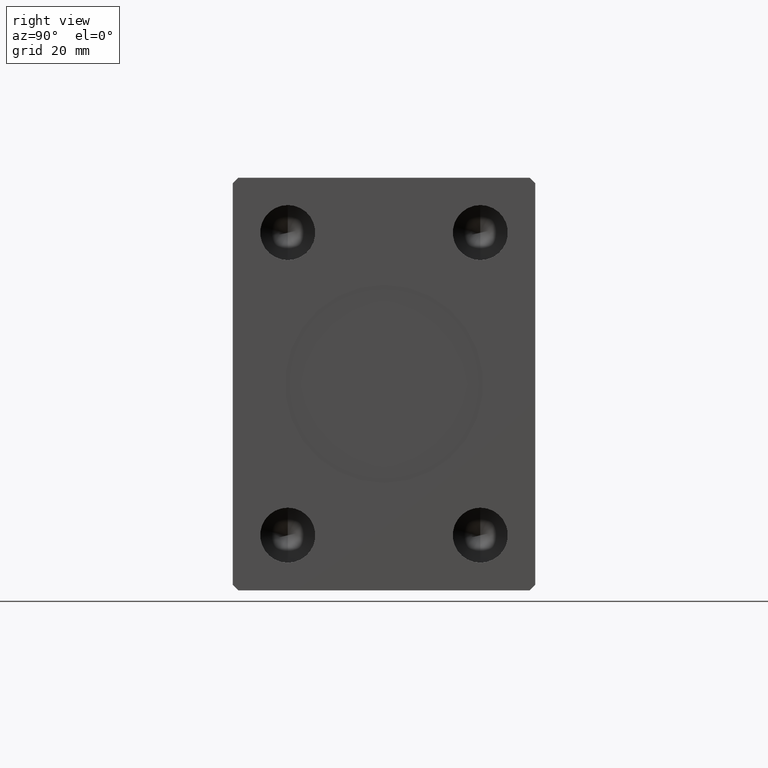
[diagram: clean part render]
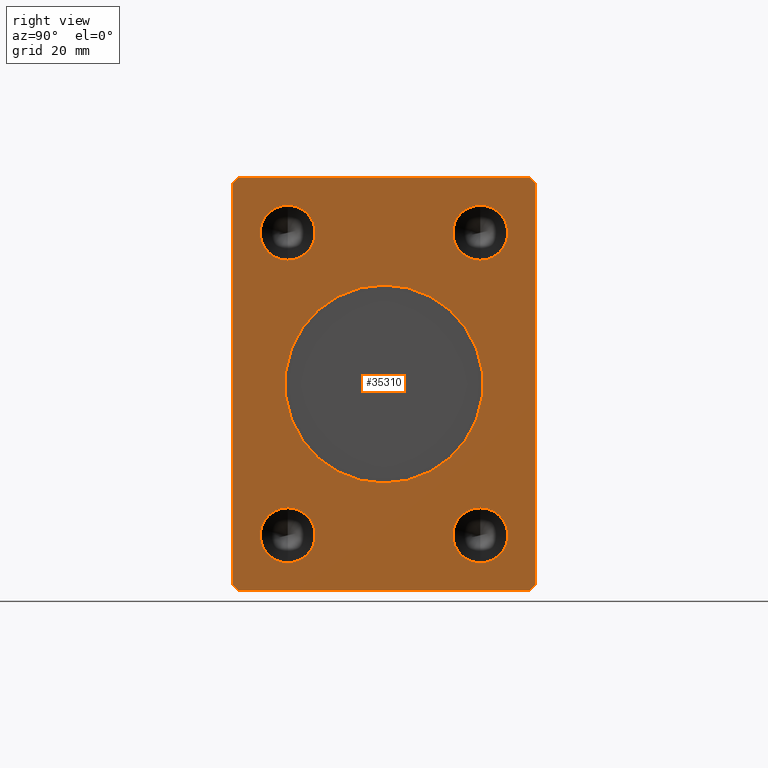
[diagram: same view with one face highlighted and labeled with its STEP entity id]
A machine part, right view. The second image highlights one B-rep face of the part: STEP entity #35310.
In plain terms, the highlighted planar face has unit normal (1, 0, 0).
Its self-contained STEP definition (entity closure, byte-faithful):
#199 = AXIS2_PLACEMENT_3D ( 'NONE', #5553, #32795, #6223 ) ;
#206 = CARTESIAN_POINT ( 'NONE',  ( 85.00000000000000000, -17.50000000000000000, 27.50000000000000355 ) ) ;
#302 = DIRECTION ( 'NONE',  ( 0.000000000000000000, 1.000000000000000000, 0.000000000000000000 ) ) ;
#631 = CARTESIAN_POINT ( 'NONE',  ( 85.00000000000000000, 17.50000000000000000, -27.49999999999999289 ) ) ;
#1822 = CARTESIAN_POINT ( 'NONE',  ( 85.00000000000000000, -27.50000000000000355, -36.49999999999998579 ) ) ;
#2115 = DIRECTION ( 'NONE',  ( 1.000000000000000000, -0.000000000000000000, -0.000000000000000000 ) ) ;
#2215 = ORIENTED_EDGE ( 'NONE', *, *, #30152, .F. ) ;
#2808 = VERTEX_POINT ( 'NONE', #28098 ) ;
#2910 = VERTEX_POINT ( 'NONE', #35242 ) ;
#3695 = VECTOR ( 'NONE', #27096, 1000.000000000000114 ) ;
#3765 = CARTESIAN_POINT ( 'NONE',  ( 85.00000000000000000, 0.000000000000000000, 0.000000000000000000 ) ) ;
#3893 = EDGE_CURVE ( 'NONE', #24836, #31024, #39962, .T. ) ;
#4330 = ORIENTED_EDGE ( 'NONE', *, *, #30141, .F. ) ;
#5388 = AXIS2_PLACEMENT_3D ( 'NONE', #36106, #22479, #22919 ) ;
#5553 = CARTESIAN_POINT ( 'NONE',  ( 85.00000000000000000, 0.000000000000000000, 0.000000000000000000 ) ) ;
#5640 = CIRCLE ( 'NONE', #23457, 4.999999999999997335 ) ;
#6223 = DIRECTION ( 'NONE',  ( 0.000000000000000000, 0.000000000000000000, -1.000000000000000000 ) ) ;
#6496 = EDGE_LOOP ( 'NONE', ( #35890, #9903, #34391, #42534, #39972, #10033, #9014, #25118 ) ) ;
#6545 = ORIENTED_EDGE ( 'NONE', *, *, #22976, .F. ) ;
#6787 = ORIENTED_EDGE ( 'NONE', *, *, #10307, .F. ) ;
#6996 = LINE ( 'NONE', #27326, #3695 ) ;
#7002 = VERTEX_POINT ( 'NONE', #37004 ) ;
#7195 = ORIENTED_EDGE ( 'NONE', *, *, #10533, .F. ) ;
#7376 = VERTEX_POINT ( 'NONE', #15178 ) ;
#7530 = DIRECTION ( 'NONE',  ( 0.000000000000000000, 0.000000000000000000, -1.000000000000000000 ) ) ;
#7533 = DIRECTION ( 'NONE',  ( 0.000000000000000000, 0.000000000000000000, -1.000000000000000000 ) ) ;
#7807 = EDGE_LOOP ( 'NONE', ( #2215, #6787 ) ) ;
#7862 = CARTESIAN_POINT ( 'NONE',  ( 85.00000000000000000, 27.50000000000000711, -36.49999999999999289 ) ) ;
#7963 = EDGE_CURVE ( 'NONE', #21413, #9124, #6996, .T. ) ;
#8009 = CIRCLE ( 'NONE', #32980, 4.999999999999997335 ) ;
#8524 = VERTEX_POINT ( 'NONE', #14485 ) ;
#8668 = CARTESIAN_POINT ( 'NONE',  ( 85.00000000000000000, 27.50000000000000711, -36.49999999999999289 ) ) ;
#8861 = EDGE_CURVE ( 'NONE', #18302, #16435, #15110, .T. ) ;
#9014 = ORIENTED_EDGE ( 'NONE', *, *, #17332, .T. ) ;
#9124 = VERTEX_POINT ( 'NONE', #42897 ) ;
#9134 = AXIS2_PLACEMENT_3D ( 'NONE', #3765, #20277, #10226 ) ;
#9376 = LINE ( 'NONE', #1822, #33126 ) ;
#9565 = FACE_BOUND ( 'NONE', #39893, .T. ) ;
#9572 = ORIENTED_EDGE ( 'NONE', *, *, #19525, .F. ) ;
#9697 = CARTESIAN_POINT ( 'NONE',  ( 85.00000000000000000, -17.50000000000000000, -27.49999999999999645 ) ) ;
#9903 = ORIENTED_EDGE ( 'NONE', *, *, #19732, .T. ) ;
#10033 = ORIENTED_EDGE ( 'NONE', *, *, #13685, .T. ) ;
#10226 = DIRECTION ( 'NONE',  ( 0.000000000000000000, 0.000000000000000000, -1.000000000000000000 ) ) ;
#10307 = EDGE_CURVE ( 'NONE', #42931, #2808, #35145, .T. ) ;
#10533 = EDGE_CURVE ( 'NONE', #16435, #18302, #31565, .T. ) ;
#10838 = AXIS2_PLACEMENT_3D ( 'NONE', #11917, #2115, #29343 ) ;
#11140 = CIRCLE ( 'NONE', #14734, 4.999999999999993783 ) ;
#11178 = CARTESIAN_POINT ( 'NONE',  ( 85.00000000000000000, -27.50000000000000711, 36.50000000000000711 ) ) ;
#11531 = ORIENTED_EDGE ( 'NONE', *, *, #29089, .F. ) ;
#11563 = DIRECTION ( 'NONE',  ( 0.000000000000000000, 0.7071067811865474617, 0.7071067811865474617 ) ) ;
#11917 = CARTESIAN_POINT ( 'NONE',  ( 85.00000000000000000, -17.50000000000000000, -27.49999999999999645 ) ) ;
#11978 = CARTESIAN_POINT ( 'NONE',  ( 85.00000000000000000, -17.50000000000000000, 32.50000000000000000 ) ) ;
#12905 = CARTESIAN_POINT ( 'NONE',  ( 85.00000000000000000, 26.50000000000000355, 37.50000000000000711 ) ) ;
#13292 = LINE ( 'NONE', #16206, #38929 ) ;
#13685 = EDGE_CURVE ( 'NONE', #2910, #30439, #23733, .T. ) ;
#13879 = VERTEX_POINT ( 'NONE', #31411 ) ;
#13940 = CIRCLE ( 'NONE', #5388, 4.999999999999997335 ) ;
#14447 = DIRECTION ( 'NONE',  ( 1.000000000000000000, 0.000000000000000000, 0.000000000000000000 ) ) ;
#14485 = CARTESIAN_POINT ( 'NONE',  ( 85.00000000000000000, 17.50000000000000000, -22.49999999999999645 ) ) ;
#14687 = LINE ( 'NONE', #31897, #24479 ) ;
#14734 = AXIS2_PLACEMENT_3D ( 'NONE', #38286, #23782, #37410 ) ;
#15110 = CIRCLE ( 'NONE', #10838, 4.999999999999997335 ) ;
#15178 = CARTESIAN_POINT ( 'NONE',  ( 85.00000000000000000, 17.50000000000000000, 32.50000000000000000 ) ) ;
#16206 = CARTESIAN_POINT ( 'NONE',  ( 85.00000000000000000, 26.50000000000000355, 37.50000000000000711 ) ) ;
#16435 = VERTEX_POINT ( 'NONE', #42436 ) ;
#16550 = VERTEX_POINT ( 'NONE', #41938 ) ;
#16678 = CARTESIAN_POINT ( 'NONE',  ( 85.00000000000000000, -17.50000000000000000, 27.50000000000000355 ) ) ;
#16844 = VECTOR ( 'NONE', #26084, 1000.000000000000000 ) ;
#16851 = EDGE_LOOP ( 'NONE', ( #29803, #7195 ) ) ;
#17332 = EDGE_CURVE ( 'NONE', #30439, #28608, #14687, .T. ) ;
#17771 = CARTESIAN_POINT ( 'NONE',  ( 85.00000000000000000, -17.50000000000000000, -32.49999999999999289 ) ) ;
#18302 = VERTEX_POINT ( 'NONE', #17771 ) ;
#18505 = CARTESIAN_POINT ( 'NONE',  ( 85.00000000000000000, 17.50000000000000000, 27.50000000000000000 ) ) ;
#18891 = VECTOR ( 'NONE', #24796, 1000.000000000000000 ) ;
#18936 = FACE_BOUND ( 'NONE', #7807, .T. ) ;
#19525 = EDGE_CURVE ( 'NONE', #7376, #28926, #13940, .T. ) ;
#19732 = EDGE_CURVE ( 'NONE', #35993, #21413, #13292, .T. ) ;
#20277 = DIRECTION ( 'NONE',  ( 1.000000000000000000, 0.000000000000000000, 0.000000000000000000 ) ) ;
#20279 = ORIENTED_EDGE ( 'NONE', *, *, #3893, .F. ) ;
#20705 = AXIS2_PLACEMENT_3D ( 'NONE', #16678, #30308, #43929 ) ;
#21413 = VERTEX_POINT ( 'NONE', #34372 ) ;
#22423 = EDGE_CURVE ( 'NONE', #28608, #16550, #41309, .T. ) ;
#22437 = DIRECTION ( 'NONE',  ( 1.000000000000000000, -0.000000000000000000, -0.000000000000000000 ) ) ;
#22479 = DIRECTION ( 'NONE',  ( 1.000000000000000000, -0.000000000000000000, -0.000000000000000000 ) ) ;
#22919 = DIRECTION ( 'NONE',  ( 0.000000000000000000, 0.000000000000000000, -1.000000000000000000 ) ) ;
#22976 = EDGE_CURVE ( 'NONE', #8524, #7002, #11140, .T. ) ;
#23192 = FACE_BOUND ( 'NONE', #30251, .T. ) ;
#23249 = CARTESIAN_POINT ( 'NONE',  ( 85.00000000000000000, 17.50000000000000000, 22.50000000000000355 ) ) ;
#23361 = EDGE_LOOP ( 'NONE', ( #11531, #9572 ) ) ;
#23457 = AXIS2_PLACEMENT_3D ( 'NONE', #18505, #32582, #29018 ) ;
#23664 = VECTOR ( 'NONE', #302, 1000.000000000000000 ) ;
#23733 = LINE ( 'NONE', #44056, #23664 ) ;
#23782 = DIRECTION ( 'NONE',  ( 1.000000000000000000, -0.000000000000000000, -0.000000000000000000 ) ) ;
#24018 = DIRECTION ( 'NONE',  ( 0.000000000000000000, -1.000000000000000000, 0.000000000000000000 ) ) ;
#24479 = VECTOR ( 'NONE', #11563, 1000.000000000000114 ) ;
#24726 = DIRECTION ( 'NONE',  ( 0.000000000000000000, 0.000000000000000000, -1.000000000000000000 ) ) ;
#24796 = DIRECTION ( 'NONE',  ( 0.000000000000000000, 4.752667057470705491E-17, -1.000000000000000000 ) ) ;
#24836 = VERTEX_POINT ( 'NONE', #24844 ) ;
#24844 = CARTESIAN_POINT ( 'NONE',  ( 85.00000000000000000, -17.50000000000000000, 22.50000000000000711 ) ) ;
#25017 = CARTESIAN_POINT ( 'NONE',  ( 85.00000000000000000, 2.204364238465235428E-15, 18.00000000000000000 ) ) ;
#25118 = ORIENTED_EDGE ( 'NONE', *, *, #22423, .T. ) ;
#25865 = AXIS2_PLACEMENT_3D ( 'NONE', #30568, #14447, #24726 ) ;
#26084 = DIRECTION ( 'NONE',  ( 0.000000000000000000, -4.752667057470704875E-17, 1.000000000000000000 ) ) ;
#27096 = DIRECTION ( 'NONE',  ( 0.000000000000000000, -0.7071067811865474617, -0.7071067811865474617 ) ) ;
#27099 = CARTESIAN_POINT ( 'NONE',  ( 85.00000000000000000, 27.50000000000000355, 36.50000000000000711 ) ) ;
#27326 = CARTESIAN_POINT ( 'NONE',  ( 85.00000000000000000, -26.50000000000000711, 37.50000000000000711 ) ) ;
#28098 = CARTESIAN_POINT ( 'NONE',  ( 85.00000000000000000, 0.000000000000000000, -18.00000000000000000 ) ) ;
#28608 = VERTEX_POINT ( 'NONE', #7862 ) ;
#28926 = VERTEX_POINT ( 'NONE', #23249 ) ;
#29018 = DIRECTION ( 'NONE',  ( 0.000000000000000000, 0.000000000000000000, -1.000000000000000000 ) ) ;
#29089 = EDGE_CURVE ( 'NONE', #28926, #7376, #5640, .T. ) ;
#29227 = FACE_OUTER_BOUND ( 'NONE', #6496, .T. ) ;
#29343 = DIRECTION ( 'NONE',  ( 0.000000000000000000, 0.000000000000000000, -1.000000000000000000 ) ) ;
#29450 = FACE_BOUND ( 'NONE', #23361, .T. ) ;
#29803 = ORIENTED_EDGE ( 'NONE', *, *, #8861, .F. ) ;
#29828 = CIRCLE ( 'NONE', #9134, 18.00000000000000000 ) ;
#30141 = EDGE_CURVE ( 'NONE', #7002, #8524, #36243, .T. ) ;
#30152 = EDGE_CURVE ( 'NONE', #2808, #42931, #29828, .T. ) ;
#30251 = EDGE_LOOP ( 'NONE', ( #20279, #40402 ) ) ;
#30308 = DIRECTION ( 'NONE',  ( 1.000000000000000000, -0.000000000000000000, -0.000000000000000000 ) ) ;
#30439 = VERTEX_POINT ( 'NONE', #30721 ) ;
#30556 = DIRECTION ( 'NONE',  ( 1.000000000000000000, -0.000000000000000000, -0.000000000000000000 ) ) ;
#30568 = CARTESIAN_POINT ( 'NONE',  ( 85.00000000000000000, 0.000000000000000000, 0.000000000000000000 ) ) ;
#30721 = CARTESIAN_POINT ( 'NONE',  ( 85.00000000000000000, 26.50000000000000711, -37.49999999999999289 ) ) ;
#31024 = VERTEX_POINT ( 'NONE', #11978 ) ;
#31411 = CARTESIAN_POINT ( 'NONE',  ( 85.00000000000000000, -27.50000000000000355, -36.49999999999998579 ) ) ;
#31565 = CIRCLE ( 'NONE', #42975, 4.999999999999997335 ) ;
#31897 = CARTESIAN_POINT ( 'NONE',  ( 85.00000000000000000, 26.50000000000000711, -37.49999999999999289 ) ) ;
#31985 = VECTOR ( 'NONE', #37153, 1000.000000000000114 ) ;
#32582 = DIRECTION ( 'NONE',  ( 1.000000000000000000, -0.000000000000000000, -0.000000000000000000 ) ) ;
#32795 = DIRECTION ( 'NONE',  ( 1.000000000000000000, 0.000000000000000000, 0.000000000000000000 ) ) ;
#32980 = AXIS2_PLACEMENT_3D ( 'NONE', #206, #30556, #7533 ) ;
#33126 = VECTOR ( 'NONE', #33503, 1000.000000000000114 ) ;
#33468 = FACE_BOUND ( 'NONE', #16851, .T. ) ;
#33503 = DIRECTION ( 'NONE',  ( 0.000000000000000000, 0.7071067811865451302, -0.7071067811865500152 ) ) ;
#34094 = AXIS2_PLACEMENT_3D ( 'NONE', #631, #41477, #7530 ) ;
#34372 = CARTESIAN_POINT ( 'NONE',  ( 85.00000000000000000, -26.50000000000000711, 37.50000000000000711 ) ) ;
#34391 = ORIENTED_EDGE ( 'NONE', *, *, #7963, .T. ) ;
#35145 = CIRCLE ( 'NONE', #25865, 18.00000000000000000 ) ;
#35242 = CARTESIAN_POINT ( 'NONE',  ( 85.00000000000000000, -26.50000000000000355, -37.49999999999999289 ) ) ;
#35310 = ADVANCED_FACE ( 'NONE', ( #18936, #29450, #33468, #9565, #23192, #29227 ), #40379, .T. ) ;
#35890 = ORIENTED_EDGE ( 'NONE', *, *, #40836, .T. ) ;
#35993 = VERTEX_POINT ( 'NONE', #12905 ) ;
#36064 = DIRECTION ( 'NONE',  ( 0.000000000000000000, 0.000000000000000000, -1.000000000000000000 ) ) ;
#36106 = CARTESIAN_POINT ( 'NONE',  ( 85.00000000000000000, 17.50000000000000000, 27.50000000000000000 ) ) ;
#36126 = EDGE_CURVE ( 'NONE', #31024, #24836, #8009, .T. ) ;
#36243 = CIRCLE ( 'NONE', #34094, 4.999999999999993783 ) ;
#36941 = EDGE_CURVE ( 'NONE', #13879, #2910, #9376, .T. ) ;
#37004 = CARTESIAN_POINT ( 'NONE',  ( 85.00000000000000000, 17.50000000000000000, -32.49999999999998579 ) ) ;
#37153 = DIRECTION ( 'NONE',  ( 0.000000000000000000, -0.7071067811865474617, 0.7071067811865474617 ) ) ;
#37410 = DIRECTION ( 'NONE',  ( 0.000000000000000000, 0.000000000000000000, -1.000000000000000000 ) ) ;
#38286 = CARTESIAN_POINT ( 'NONE',  ( 85.00000000000000000, 17.50000000000000000, -27.49999999999999289 ) ) ;
#38929 = VECTOR ( 'NONE', #24018, 1000.000000000000000 ) ;
#39893 = EDGE_LOOP ( 'NONE', ( #4330, #6545 ) ) ;
#39962 = CIRCLE ( 'NONE', #20705, 4.999999999999997335 ) ;
#39972 = ORIENTED_EDGE ( 'NONE', *, *, #36941, .T. ) ;
#40379 = PLANE ( 'NONE',  #199 ) ;
#40402 = ORIENTED_EDGE ( 'NONE', *, *, #36126, .F. ) ;
#40836 = EDGE_CURVE ( 'NONE', #16550, #35993, #43856, .T. ) ;
#41309 = LINE ( 'NONE', #8668, #16844 ) ;
#41477 = DIRECTION ( 'NONE',  ( 1.000000000000000000, -0.000000000000000000, -0.000000000000000000 ) ) ;
#41780 = LINE ( 'NONE', #11178, #18891 ) ;
#41938 = CARTESIAN_POINT ( 'NONE',  ( 85.00000000000000000, 27.50000000000000355, 36.50000000000000711 ) ) ;
#42436 = CARTESIAN_POINT ( 'NONE',  ( 85.00000000000000000, -17.50000000000000000, -22.50000000000000000 ) ) ;
#42534 = ORIENTED_EDGE ( 'NONE', *, *, #42988, .T. ) ;
#42897 = CARTESIAN_POINT ( 'NONE',  ( 85.00000000000000000, -27.50000000000000711, 36.50000000000000711 ) ) ;
#42931 = VERTEX_POINT ( 'NONE', #25017 ) ;
#42975 = AXIS2_PLACEMENT_3D ( 'NONE', #9697, #22437, #36064 ) ;
#42988 = EDGE_CURVE ( 'NONE', #9124, #13879, #41780, .T. ) ;
#43856 = LINE ( 'NONE', #27099, #31985 ) ;
#43929 = DIRECTION ( 'NONE',  ( 0.000000000000000000, 0.000000000000000000, -1.000000000000000000 ) ) ;
#44056 = CARTESIAN_POINT ( 'NONE',  ( 85.00000000000000000, -26.50000000000000355, -37.49999999999999289 ) ) ;